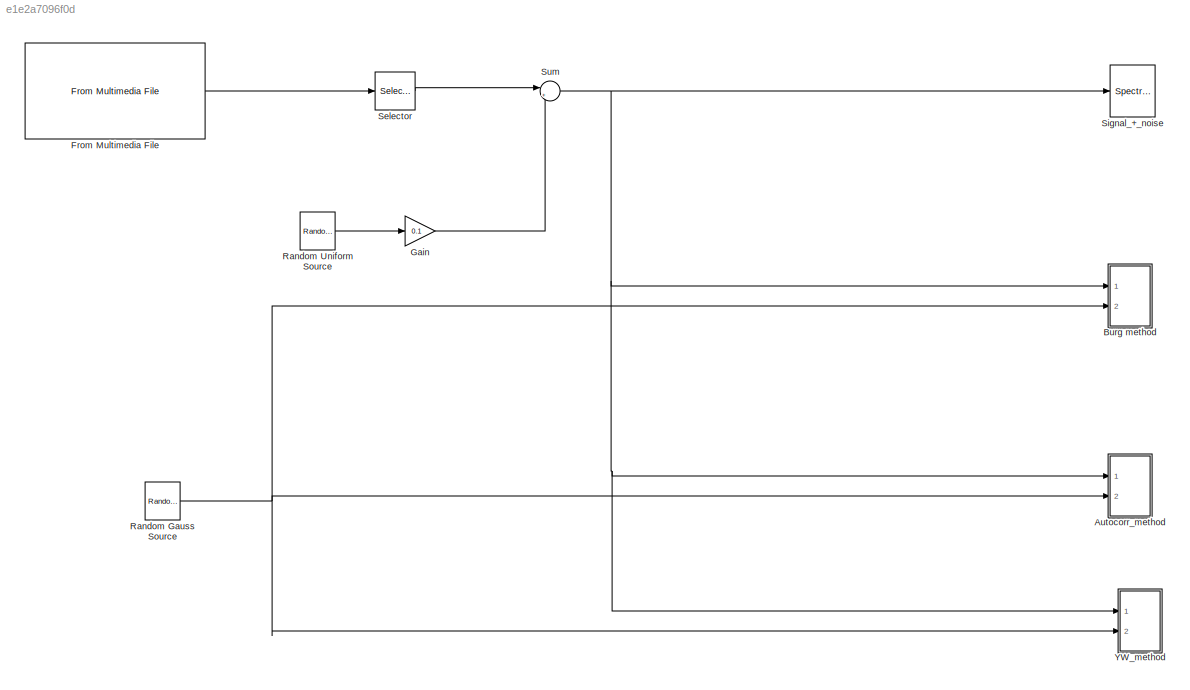
MODEL slx_e1e2a7096f0d
KIND model
CONFIG InitFcn = WM_Sim_config
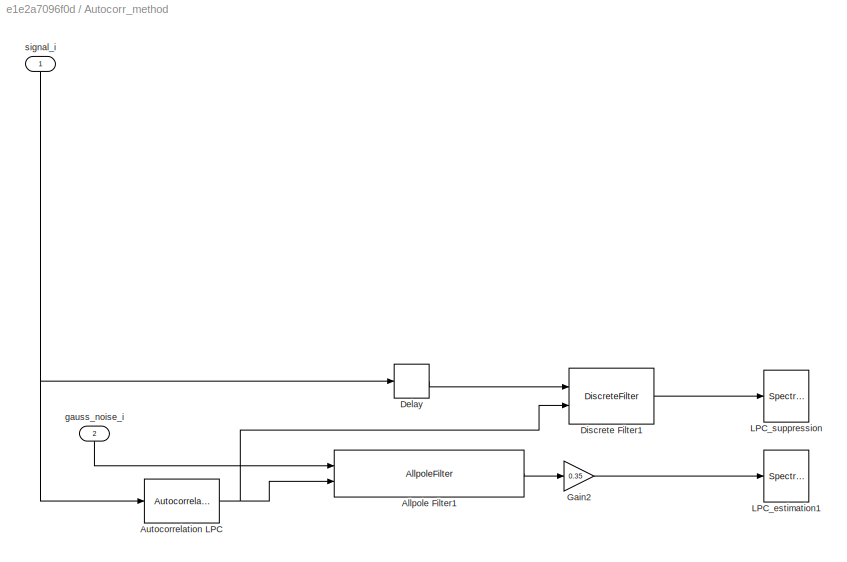
BLOCK [SubSystem] Autocorr_method
  FunctionWithSeparateData = off
  MaskHideContents = off
  MinAlgLoopOccurrences = off
  Opaque = off
  Ports = [2]
  PropExecContextOutsideSubsystem = off
  RTWSystemCode = Auto
  RequestExecContextInheritance = off
BLOCK [AllpoleFilter] Autocorr_method/Allpole Filter1
  CoefSource = Input port
  FilterStructure = Direct form transposed
  Ports = [2, 1]
BLOCK [Reference] Autocorr_method/Autocorrelation LPC  REF=dsplp/Autocorrelation
LPC
  Ports = [1, 1]
  SourceBlock = dsplp/Autocorrelation\nLPC
  SourceType = Autocorrelation LPC
  inherit_prediction_order = off
  lpcCoeffOutFcn = A
  lpcOutP = off
  order = WM.Sim.SuppFilt.order
BLOCK [Delay] Autocorr_method/Delay
  DelayLength = WM.Sim.Frame_len
  InitialCondition = 0
  InputPortMap = u0
  InputProcessing = Columns as channels (frame based)
  Ports = [1, 1]
BLOCK [DiscreteFilter] Autocorr_method/Discrete Filter1
  Denominator = [1]
  FilterStructure = Direct form II transposed
  InputPortMap = u0,p1
  InputProcessing = Columns as channels (frame based)
  Numerator = [0.5 0.5]
  NumeratorSource = Input port
  Ports = [2, 1]
  a0EqualsOne = on
BLOCK [Gain] Autocorr_method/Gain2
  Gain = 0.35
  OutDataTypeStr = Inherit: Inherit via internal rule
  ParamDataTypeStr = Inherit: Inherit via internal rule
  SaturateOnIntegerOverflow = off
BLOCK [SpectrumAnalyzer] Autocorr_method/LPC_estimation1
  CloseFcn = scopeextensions.ScopeBlock.callback(gcbh, 'onBlockClose');
  CopyFcn = scopeextensions.ScopeBlock.callback(gcbh, 'onBlockCopy', gcbh);
  DeleteFcn = scopeextensions.ScopeBlock.callback(gcbh, 'onBlockDelete');
  NameChangeFcn = scopeextensions.ScopeBlock.callback(gcbh, 'onBlockRename');
  Ports = [1]
  PreDeleteFcn = scopeextensions.ScopeBlock.callback(gcbh, 'onBlockPreDelete');
  PreSaveFcn = scopeextensions.ScopeBlock.callback(gcbh, 'onModelSave');
  UserDataPersistent = on
BLOCK [SpectrumAnalyzer] Autocorr_method/LPC_suppression
  CloseFcn = scopeextensions.ScopeBlock.callback(gcbh, 'onBlockClose');
  CopyFcn = scopeextensions.ScopeBlock.callback(gcbh, 'onBlockCopy', gcbh);
  DeleteFcn = scopeextensions.ScopeBlock.callback(gcbh, 'onBlockDelete');
  NameChangeFcn = scopeextensions.ScopeBlock.callback(gcbh, 'onBlockRename');
  Ports = [1]
  PreDeleteFcn = scopeextensions.ScopeBlock.callback(gcbh, 'onBlockPreDelete');
  PreSaveFcn = scopeextensions.ScopeBlock.callback(gcbh, 'onModelSave');
  UserDataPersistent = on
BLOCK [Inport] Autocorr_method/gauss_noise_i
  IconDisplay = Port number
  Port = 2
BLOCK [Inport] Autocorr_method/signal_i
  IconDisplay = Port number
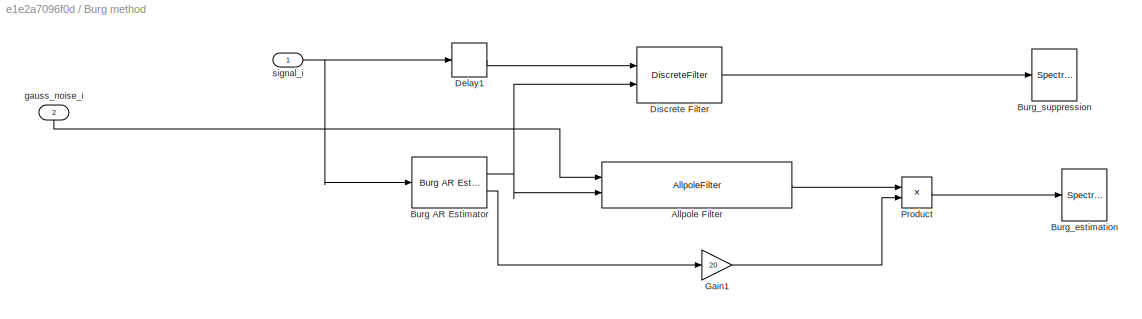
BLOCK [SubSystem] Burg method
  FunctionWithSeparateData = off
  MaskHideContents = off
  MinAlgLoopOccurrences = off
  Opaque = off
  Ports = [2]
  PropExecContextOutsideSubsystem = off
  RTWSystemCode = Auto
  RequestExecContextInheritance = off
BLOCK [AllpoleFilter] Burg method/Allpole Filter
  CoefSource = Input port
  FilterStructure = Direct form transposed
  Ports = [2, 1]
BLOCK [Reference] Burg method/Burg AR Estimator  REF=dspparest3/Burg AR
Estimator
  Ports = [1, 2]
  SourceBlock = dspparest3/Burg AR\nEstimator
  SourceType = Burg AR Estimator
  fcn = A
  inheritOrder = off
  ord = WM.Sim.SuppFilt.order
BLOCK [SpectrumAnalyzer] Burg method/Burg_estimation
  CloseFcn = scopeextensions.ScopeBlock.callback(gcbh, 'onBlockClose');
  CopyFcn = scopeextensions.ScopeBlock.callback(gcbh, 'onBlockCopy', gcbh);
  DeleteFcn = scopeextensions.ScopeBlock.callback(gcbh, 'onBlockDelete');
  NameChangeFcn = scopeextensions.ScopeBlock.callback(gcbh, 'onBlockRename');
  Ports = [1]
  PreDeleteFcn = scopeextensions.ScopeBlock.callback(gcbh, 'onBlockPreDelete');
  PreSaveFcn = scopeextensions.ScopeBlock.callback(gcbh, 'onModelSave');
  UserDataPersistent = on
BLOCK [SpectrumAnalyzer] Burg method/Burg_suppression
  CloseFcn = scopeextensions.ScopeBlock.callback(gcbh, 'onBlockClose');
  CopyFcn = scopeextensions.ScopeBlock.callback(gcbh, 'onBlockCopy', gcbh);
  DeleteFcn = scopeextensions.ScopeBlock.callback(gcbh, 'onBlockDelete');
  NameChangeFcn = scopeextensions.ScopeBlock.callback(gcbh, 'onBlockRename');
  Ports = [1]
  PreDeleteFcn = scopeextensions.ScopeBlock.callback(gcbh, 'onBlockPreDelete');
  PreSaveFcn = scopeextensions.ScopeBlock.callback(gcbh, 'onModelSave');
  UserDataPersistent = on
BLOCK [Delay] Burg method/Delay1
  DelayLength = WM.Sim.Frame_len
  InitialCondition = 0
  InputPortMap = u0
  InputProcessing = Columns as channels (frame based)
  Ports = [1, 1]
BLOCK [DiscreteFilter] Burg method/Discrete Filter
  Denominator = [1]
  FilterStructure = Direct form II transposed
  InputPortMap = u0,p1
  InputProcessing = Columns as channels (frame based)
  Numerator = [0.5 0.5]
  NumeratorSource = Input port
  Ports = [2, 1]
  a0EqualsOne = on
BLOCK [Gain] Burg method/Gain1
  Gain = 20
  OutDataTypeStr = Inherit: Inherit via internal rule
  ParamDataTypeStr = Inherit: Inherit via internal rule
  SaturateOnIntegerOverflow = off
BLOCK [Product] Burg method/Product
  InputSameDT = off
  OutDataTypeStr = Inherit: Inherit via internal rule
  Ports = [2, 1]
  RndMeth = Floor
  SaturateOnIntegerOverflow = off
BLOCK [Inport] Burg method/gauss_noise_i
  IconDisplay = Port number
  Port = 2
BLOCK [Inport] Burg method/signal_i
  IconDisplay = Port number
BLOCK [Reference] From Multimedia File  REF=dspvision/From Multimedia File
  Ports = [0, 1]
  SourceBlock = dspvision/From Multimedia File
  SourceType = From Multimedia File
  audioDataType = double
  audioFrameSize = WM.Sim.Frame_len
  colorVideoFormat = Separate color signals
  computeAudioFrameSize = off
  dataOrg = Column-major
  fourcc = RGB
  inheritSampleTime = on
  inputFilename = ./audio_test/Balmorhea - Days.wav
  isIntensityVideo = off
  loop = on
  noAudioOutput = off
  numPlays = 1
  outSamplingMode = Frame based
  outputEOF = off
  outputStreams = Audio only
  userDefinedSampleTime = 1/30
  videoDataType = single
BLOCK [Gain] Gain
  Gain = 0.1
  OutDataTypeStr = Inherit: Inherit via internal rule
  ParamDataTypeStr = Inherit: Inherit via internal rule
  SaturateOnIntegerOverflow = off
BLOCK [Reference] Random Gauss Source  REF=dspsrcs4/Random
Source
  CltLength = 12
  DataType = Double
  IsInherit = off
  MaxVal = 1
  MeanVal = 0
  MinVal = 0
  NormMethod = Ziggurat
  OutComplex = Real
  Ports = [0, 1]
  RepMode = Not repeatable
  SampFrame = WM.Sim.Frame_len
  SampMode = Discrete
  SampTime = WM.Sim.SampleTimes.Tchannel
  SourceBlock = dspsrcs4/Random\nSource
  SourceType = Random Source
  SrcType = Gaussian
  UserDataPersistent = on
  VarVal = 1
  rawSeed = 1
BLOCK [Reference] Random Uniform Source  REF=dspsrcs4/Random
Source
  CltLength = 12
  DataType = Double
  IsInherit = off
  MaxVal = 1
  MeanVal = 0
  MinVal = -1
  NormMethod = Ziggurat
  OutComplex = Real
  Ports = [0, 1]
  RepMode = Not repeatable
  SampFrame = WM.Sim.Frame_len
  SampMode = Discrete
  SampTime = WM.Sim.SampleTimes.Tchannel
  SourceBlock = dspsrcs4/Random\nSource
  SourceType = Random Source
  SrcType = Uniform
  UserDataPersistent = on
  VarVal = 1
  rawSeed = 1
BLOCK [Selector] Selector
  IndexOptions = Select all,Index vector (dialog)
  Indices = [1],1
  InputPortWidth = 3
  NumberOfDimensions = 2
  OutputSizes = 1,1
  Ports = [1, 1]
BLOCK [SpectrumAnalyzer] Signal_+_noise
  CloseFcn = scopeextensions.ScopeBlock.callback(gcbh, 'onBlockClose');
  CopyFcn = scopeextensions.ScopeBlock.callback(gcbh, 'onBlockCopy', gcbh);
  DeleteFcn = scopeextensions.ScopeBlock.callback(gcbh, 'onBlockDelete');
  NameChangeFcn = scopeextensions.ScopeBlock.callback(gcbh, 'onBlockRename');
  Ports = [1]
  PreDeleteFcn = scopeextensions.ScopeBlock.callback(gcbh, 'onBlockPreDelete');
  PreSaveFcn = scopeextensions.ScopeBlock.callback(gcbh, 'onModelSave');
  UserDataPersistent = on
BLOCK [Sum] Sum
  IconShape = round
  InputSameDT = off
  Inputs = |++
  OutDataTypeStr = Inherit: Inherit via internal rule
  Ports = [2, 1]
  SaturateOnIntegerOverflow = off
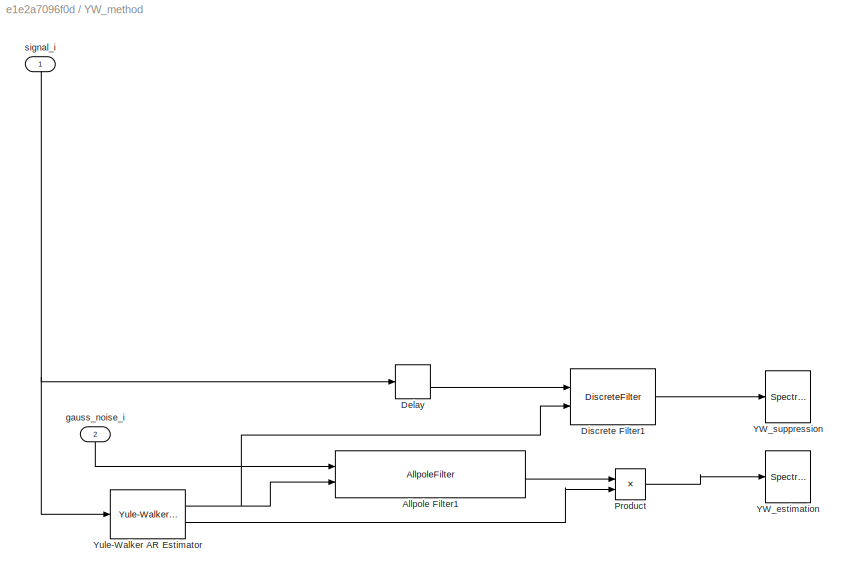
BLOCK [SubSystem] YW_method
  FunctionWithSeparateData = off
  MaskHideContents = off
  MinAlgLoopOccurrences = off
  Opaque = off
  Ports = [2]
  PropExecContextOutsideSubsystem = off
  RTWSystemCode = Auto
  RequestExecContextInheritance = off
BLOCK [AllpoleFilter] YW_method/Allpole Filter1
  CoefSource = Input port
  FilterStructure = Direct form transposed
  Ports = [2, 1]
BLOCK [Delay] YW_method/Delay
  DelayLength = WM.Sim.Frame_len
  InitialCondition = 0
  InputPortMap = u0
  InputProcessing = Columns as channels (frame based)
  Ports = [1, 1]
BLOCK [DiscreteFilter] YW_method/Discrete Filter1
  Denominator = [1]
  FilterStructure = Direct form II transposed
  InputPortMap = u0,p1
  InputProcessing = Columns as channels (frame based)
  Numerator = [0.5 0.5]
  NumeratorSource = Input port
  Ports = [2, 1]
  a0EqualsOne = on
BLOCK [Product] YW_method/Product
  InputSameDT = off
  OutDataTypeStr = Inherit: Inherit via internal rule
  Ports = [2, 1]
  RndMeth = Floor
  SaturateOnIntegerOverflow = off
BLOCK [SpectrumAnalyzer] YW_method/YW_estimation
  CloseFcn = scopeextensions.ScopeBlock.callback(gcbh, 'onBlockClose');
  CopyFcn = scopeextensions.ScopeBlock.callback(gcbh, 'onBlockCopy', gcbh);
  DeleteFcn = scopeextensions.ScopeBlock.callback(gcbh, 'onBlockDelete');
  NameChangeFcn = scopeextensions.ScopeBlock.callback(gcbh, 'onBlockRename');
  Ports = [1]
  PreDeleteFcn = scopeextensions.ScopeBlock.callback(gcbh, 'onBlockPreDelete');
  PreSaveFcn = scopeextensions.ScopeBlock.callback(gcbh, 'onModelSave');
  UserDataPersistent = on
BLOCK [SpectrumAnalyzer] YW_method/YW_suppression
  CloseFcn = scopeextensions.ScopeBlock.callback(gcbh, 'onBlockClose');
  CopyFcn = scopeextensions.ScopeBlock.callback(gcbh, 'onBlockCopy', gcbh);
  DeleteFcn = scopeextensions.ScopeBlock.callback(gcbh, 'onBlockDelete');
  NameChangeFcn = scopeextensions.ScopeBlock.callback(gcbh, 'onBlockRename');
  Ports = [1]
  PreDeleteFcn = scopeextensions.ScopeBlock.callback(gcbh, 'onBlockPreDelete');
  PreSaveFcn = scopeextensions.ScopeBlock.callback(gcbh, 'onModelSave');
  UserDataPersistent = on
BLOCK [Reference] YW_method/Yule-Walker AR Estimator  REF=dspparest3/Yule-Walker AR
Estimator
  Ports = [1, 2]
  SourceBlock = dspparest3/Yule-Walker AR\nEstimator
  SourceType = Yule-Walker AR Estimator
  inheritOrder = off
  ord = WM.Sim.SuppFilt.order
  ywArOutType = A
BLOCK [Inport] YW_method/gauss_noise_i
  IconDisplay = Port number
  Port = 2
BLOCK [Inport] YW_method/signal_i
  IconDisplay = Port number
LINE Autocorr_method/Allpole Filter1:1 -> Autocorr_method/Gain2:1
NET Autocorr_method/Autocorrelation LPC:1 -> Autocorr_method/Allpole Filter1:2, Autocorr_method/Discrete Filter1:2
LINE Autocorr_method/Delay:1 -> Autocorr_method/Discrete Filter1:1
LINE Autocorr_method/Discrete Filter1:1 -> Autocorr_method/LPC_suppression:1
LINE Autocorr_method/Gain2:1 -> Autocorr_method/LPC_estimation1:1
LINE Autocorr_method/gauss_noise_i:1 -> Autocorr_method/Allpole Filter1:1
NET Autocorr_method/signal_i:1 -> Autocorr_method/Autocorrelation LPC:1, Autocorr_method/Delay:1
LINE Burg method/Allpole Filter:1 -> Burg method/Product:1
NET Burg method/Burg AR Estimator:1 -> Burg method/Allpole Filter:2, Burg method/Discrete Filter:2
LINE Burg method/Burg AR Estimator:2 -> Burg method/Gain1:1
LINE Burg method/Delay1:1 -> Burg method/Discrete Filter:1
LINE Burg method/Discrete Filter:1 -> Burg method/Burg_suppression:1
LINE Burg method/Gain1:1 -> Burg method/Product:2
LINE Burg method/Product:1 -> Burg method/Burg_estimation:1
LINE Burg method/gauss_noise_i:1 -> Burg method/Allpole Filter:1
NET Burg method/signal_i:1 -> Burg method/Burg AR Estimator:1, Burg method/Delay1:1
LINE From Multimedia File:1 -> Selector:1
LINE Gain:1 -> Sum:2
NET Random Gauss Source:1 -> Autocorr_method:2, Burg method:2, YW_method:2
LINE Random Uniform Source:1 -> Gain:1
LINE Selector:1 -> Sum:1
NET Sum:1 -> Autocorr_method:1, Burg method:1, Signal_+_noise:1, YW_method:1
LINE YW_method/Allpole Filter1:1 -> YW_method/Product:1
LINE YW_method/Delay:1 -> YW_method/Discrete Filter1:1
LINE YW_method/Discrete Filter1:1 -> YW_method/YW_suppression:1
LINE YW_method/Product:1 -> YW_method/YW_estimation:1
NET YW_method/Yule-Walker AR Estimator:1 -> YW_method/Allpole Filter1:2, YW_method/Discrete Filter1:2
LINE YW_method/Yule-Walker AR Estimator:2 -> YW_method/Product:2
LINE YW_method/gauss_noise_i:1 -> YW_method/Allpole Filter1:1
NET YW_method/signal_i:1 -> YW_method/Delay:1, YW_method/Yule-Walker AR Estimator:1
note: NET lines group one-source signal fan-out (src -> all destinations, sorted); 1:1 wires keep LINE
